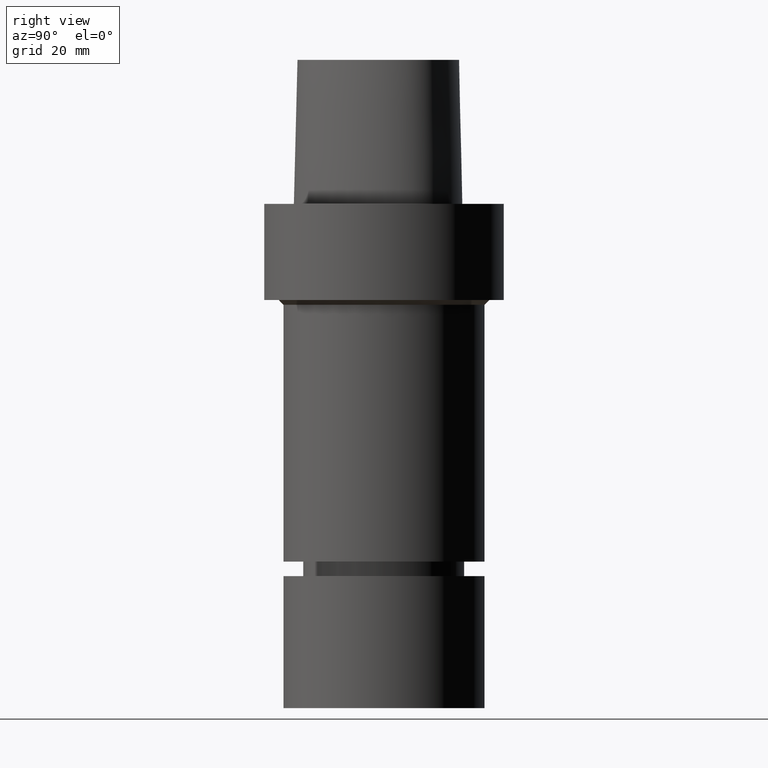
[diagram: clean part render]
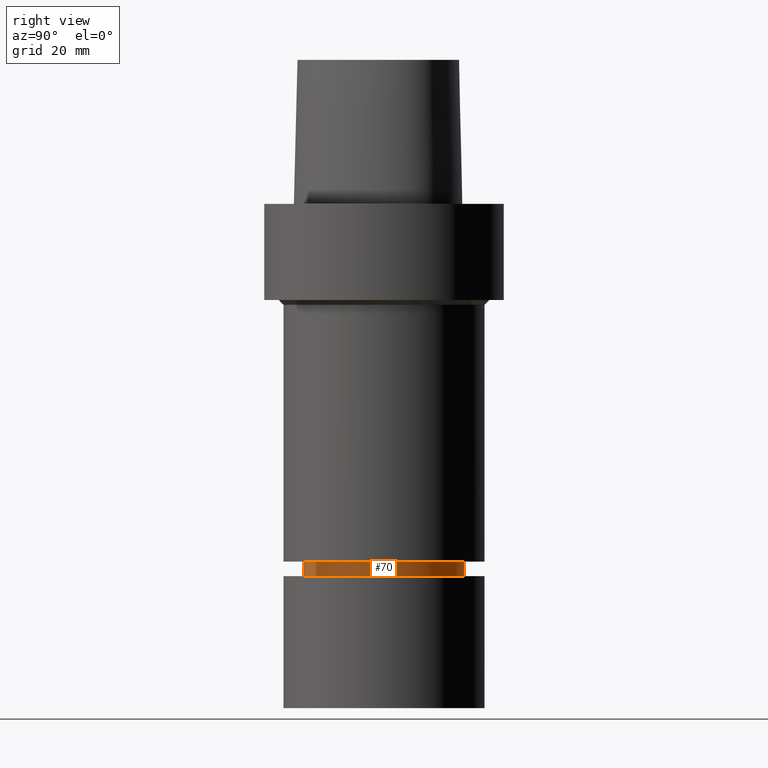
[diagram: same view with one face highlighted and labeled with its STEP entity id]
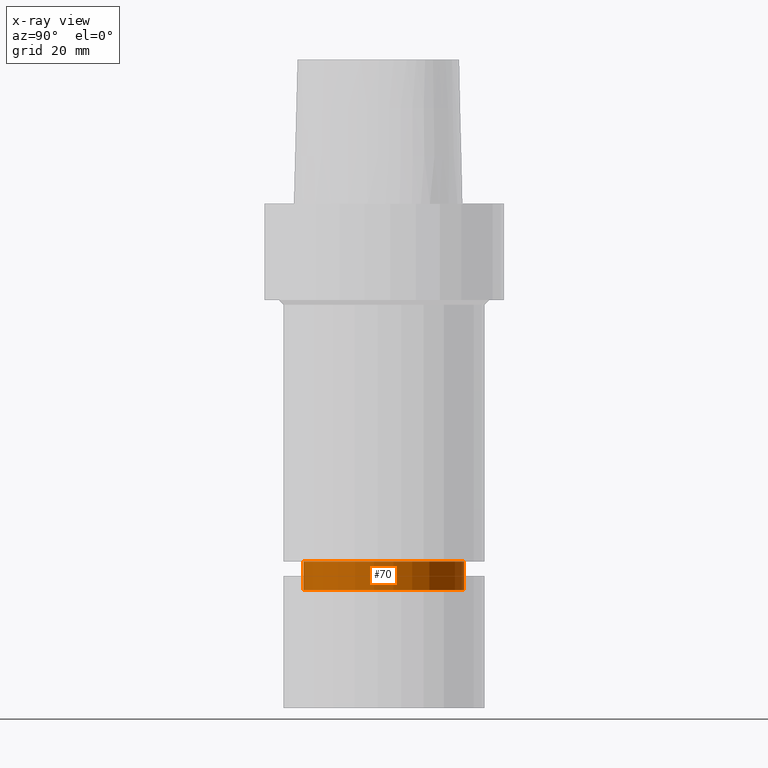
[diagram: x-ray of the same camera — body ghosted, the highlighted face saturated]
A machine part, right view. The second image highlights one B-rep face of the part: STEP entity #70.
The next image is the same camera in x-ray: the body ghosted, the highlighted face saturated — about 0% of this face is hidden behind the body in this view.
In plain terms, the highlighted cylindrical surface (bore or boss wall) has radius 16.75 mm, axis along (0, 0, -1).
Its self-contained STEP definition (entity closure, byte-faithful):
#70=ADVANCED_FACE('Unnamed[1]',(#175,#176),#177,.T.);
#105=EDGE_CURVE('Unnamed[1]',#226,#226,#227,.T.);
#138=EDGE_CURVE('Unnamed[1]',#276,#276,#277,.T.);
#175=FACE_BOUND('',#313,.T.);
#176=FACE_BOUND('',#314,.T.);
#177=CYLINDRICAL_SURFACE('',#315,16.7499999999962);
#226=VERTEX_POINT('',#472);
#227=CIRCLE('',#473,16.7500000000017);
#276=VERTEX_POINT('',#585);
#277=CIRCLE('',#586,16.7499999999907);
#313=EDGE_LOOP('',(#997));
#314=EDGE_LOOP('',(#998));
#315=AXIS2_PLACEMENT_3D('',#999,#1000,#1001);
#472=CARTESIAN_POINT('',(4.92720259161817E-015,16.7500000000017,-80.4673248654009));
#473=AXIS2_PLACEMENT_3D('',#1050,#1051,#1052);
#585=CARTESIAN_POINT('',(4.56180932682384E-015,16.7499999999907,-74.4999999999992));
#586=AXIS2_PLACEMENT_3D('',#1099,#1100,#1101);
#997=ORIENTED_EDGE('',*,*,#105,.F.);
#998=ORIENTED_EDGE('',*,*,#138,.T.);
#999=CARTESIAN_POINT('',(4.74450595922101E-015,9.48901191844201E-015,-77.4836624327001));
#1000=DIRECTION('',(6.12323399573676E-017,1.22464679914735E-016,-1.0));
#1001=DIRECTION('',(-1.23259516440783E-032,1.0,1.22464679914735E-016));
#1050=CARTESIAN_POINT('',(4.92720259161817E-015,9.85440518323635E-015,-80.4673248654009));
#1051=DIRECTION('',(6.12323399573677E-017,1.22464679914735E-016,-1.0));
#1052=DIRECTION('',(-1.23259516440783E-032,1.0,1.22464679914735E-016));
#1099=CARTESIAN_POINT('',(4.56180932682384E-015,9.12361865364768E-015,-74.4999999999992));
#1100=DIRECTION('',(6.12323399573677E-017,1.22464679914735E-016,-1.0));
#1101=DIRECTION('',(-1.23259516440783E-032,1.0,1.22464679914735E-016));